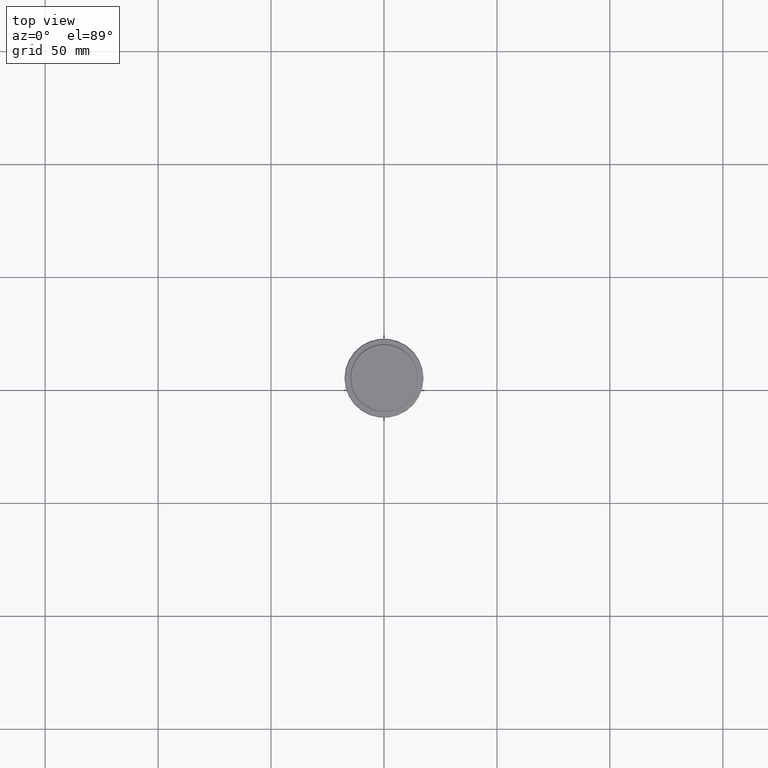
[diagram: clean part render]
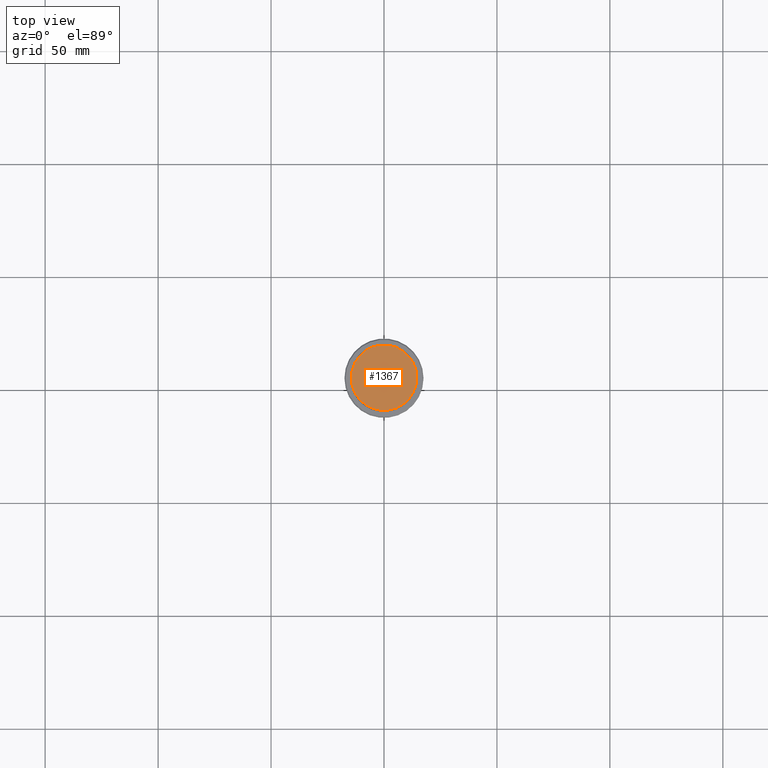
[diagram: same view with one face highlighted and labeled with its STEP entity id]
A machine part, top view. The second image highlights one B-rep face of the part: STEP entity #1367.
In plain terms, the highlighted planar face has unit normal (0, -0, 1).
Its self-contained STEP definition (entity closure, byte-faithful):
#14 = VERTEX_POINT ( 'NONE', #531 ) ;
#53 = CARTESIAN_POINT ( 'NONE',  ( 0.000000000000000000, 0.000000000000000000, 0.000000000000000000 ) ) ;
#70 = CARTESIAN_POINT ( 'NONE',  ( 0.000000000000000000, 0.000000000000000000, 0.000000000000000000 ) ) ;
#188 = CARTESIAN_POINT ( 'NONE',  ( 0.000000000000000000, 0.000000000000000000, 0.000000000000000000 ) ) ;
#225 = CARTESIAN_POINT ( 'NONE',  ( -14.50000000000001066, 0.000000000000000000, 0.000000000000000000 ) ) ;
#345 = CIRCLE ( 'NONE', #1206, 14.50000000000001066 ) ;
#411 = AXIS2_PLACEMENT_3D ( 'NONE', #53, #1328, #1356 ) ;
#528 = PLANE ( 'NONE',  #1269 ) ;
#531 = CARTESIAN_POINT ( 'NONE',  ( 14.50000000000001066, 1.806354028742346591E-15, 0.000000000000000000 ) ) ;
#602 = VERTEX_POINT ( 'NONE', #225 ) ;
#614 = DIRECTION ( 'NONE',  ( -0.000000000000000000, -0.000000000000000000, 1.000000000000000000 ) ) ;
#708 = EDGE_LOOP ( 'NONE', ( #1416, #1009 ) ) ;
#780 = EDGE_CURVE ( 'NONE', #602, #14, #1335, .T. ) ;
#928 = EDGE_CURVE ( 'NONE', #14, #602, #345, .T. ) ;
#959 = DIRECTION ( 'NONE',  ( 0.000000000000000000, -0.000000000000000000, 1.000000000000000000 ) ) ;
#1009 = ORIENTED_EDGE ( 'NONE', *, *, #928, .T. ) ;
#1048 = DIRECTION ( 'NONE',  ( 1.000000000000000000, 0.000000000000000000, 0.000000000000000000 ) ) ;
#1206 = AXIS2_PLACEMENT_3D ( 'NONE', #70, #614, #1048 ) ;
#1269 = AXIS2_PLACEMENT_3D ( 'NONE', #188, #959, #1393 ) ;
#1328 = DIRECTION ( 'NONE',  ( -0.000000000000000000, -0.000000000000000000, 1.000000000000000000 ) ) ;
#1335 = CIRCLE ( 'NONE', #411, 14.50000000000001066 ) ;
#1356 = DIRECTION ( 'NONE',  ( 1.000000000000000000, 0.000000000000000000, 0.000000000000000000 ) ) ;
#1365 = FACE_OUTER_BOUND ( 'NONE', #708, .T. ) ;
#1367 = ADVANCED_FACE ( 'NONE', ( #1365 ), #528, .T. ) ;
#1393 = DIRECTION ( 'NONE',  ( 1.000000000000000000, 0.000000000000000000, 0.000000000000000000 ) ) ;
#1416 = ORIENTED_EDGE ( 'NONE', *, *, #780, .T. ) ;